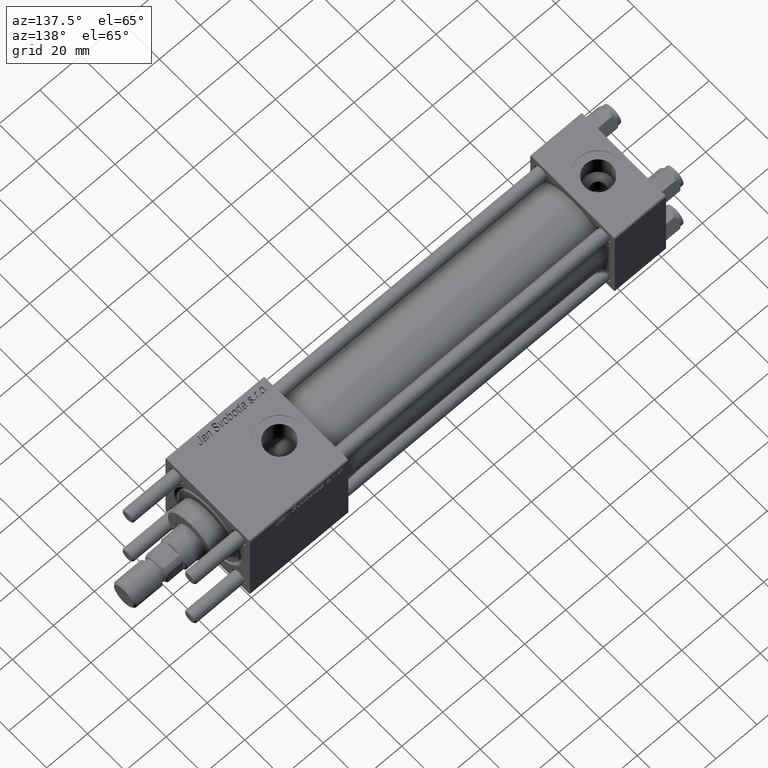
[diagram: clean part render]
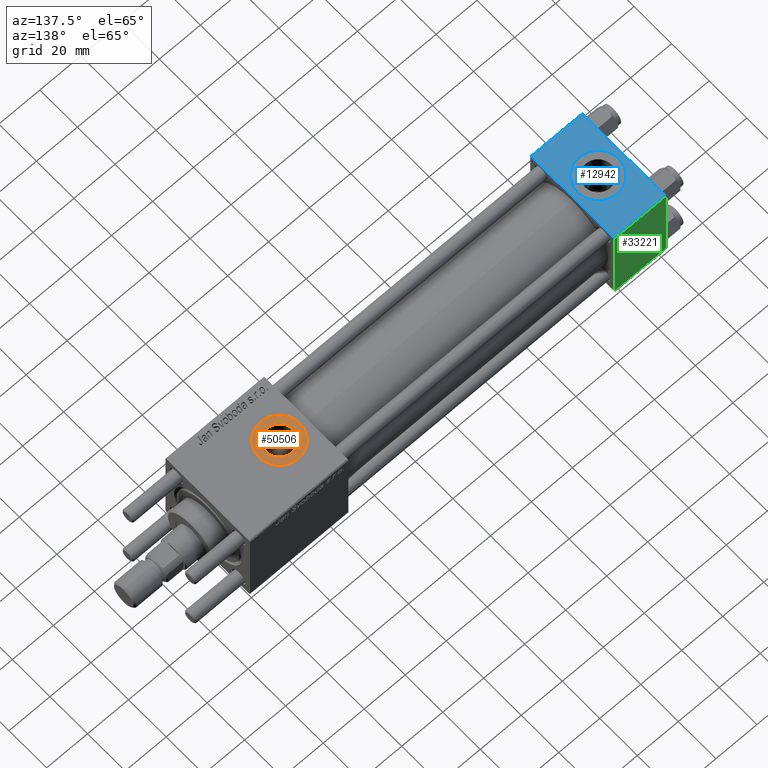
[diagram: same view with three faces highlighted in distinct colors, each labeled with its STEP entity id]
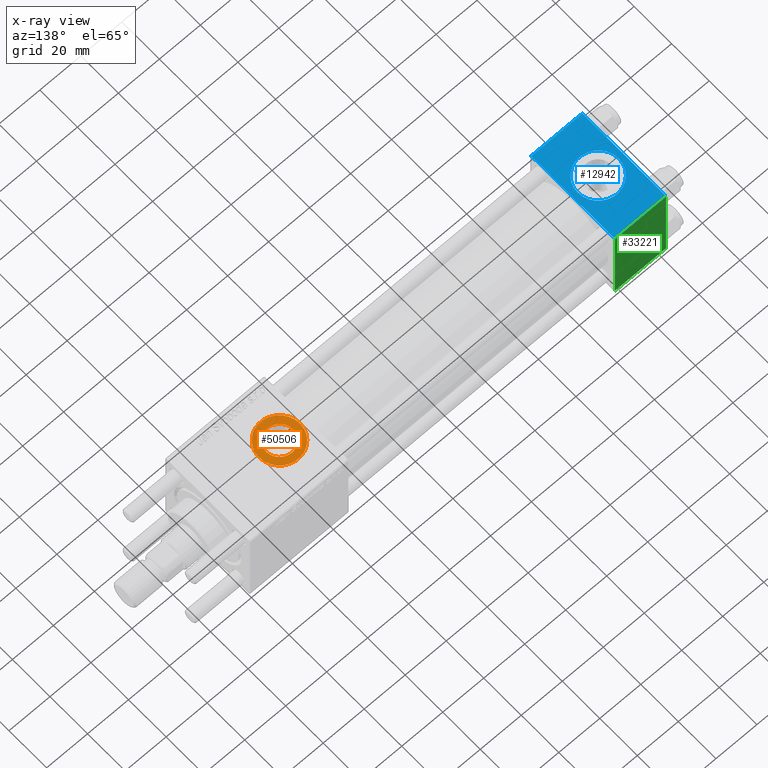
[diagram: x-ray of the same camera — body ghosted, the three highlighted faces saturated]
A machine part, auxiliary view with three faces highlighted in distinct colors.
The next image is the same camera in x-ray (body ghosted, the three faces saturated) — at least one of them is partly hidden behind the body in this view.
Their STEP definitions:

[orange] entity #50506 — the highlighted planar face has unit normal (0, 0, 1).
#644 = CARTESIAN_POINT ( 'NONE',  ( 174.5800000000000409, -4.398352834091458297E-15, 22.29999999999999716 ) ) ;
#885 = AXIS2_PLACEMENT_3D ( 'NONE', #29950, #15394, #34738 ) ;
#1888 = AXIS2_PLACEMENT_3D ( 'NONE', #26181, #39914, #2615 ) ;
#2615 = DIRECTION ( 'NONE',  ( 1.000000000000000000, 0.000000000000000000, -0.000000000000000000 ) ) ;
#5093 = CARTESIAN_POINT ( 'NONE',  ( 178.0000000000000568, -5.204170427930420494E-15, 22.29999999999999716 ) ) ;
#6928 = AXIS2_PLACEMENT_3D ( 'NONE', #46194, #36955, #31896 ) ;
#7399 = PLANE ( 'NONE',  #1888 ) ;
#8719 = CARTESIAN_POINT ( 'NONE',  ( 158.0000000000000284, -3.979523628783065857E-15, 22.29999999999999716 ) ) ;
#9430 = CARTESIAN_POINT ( 'NONE',  ( 161.4200000000000443, -5.204170427930420494E-15, 22.29999999999999716 ) ) ;
#12642 = VERTEX_POINT ( 'NONE', #9430 ) ;
#15394 = DIRECTION ( 'NONE',  ( -0.000000000000000000, -0.000000000000000000, -1.000000000000000000 ) ) ;
#16454 = VERTEX_POINT ( 'NONE', #5093 ) ;
#20750 = EDGE_CURVE ( 'NONE', #33050, #16454, #32651, .T. ) ;
#21238 = CIRCLE ( 'NONE', #57441, 10.00000000000000888 ) ;
#22995 = VERTEX_POINT ( 'NONE', #644 ) ;
#23852 = ORIENTED_EDGE ( 'NONE', *, *, #43893, .T. ) ;
#25294 = EDGE_CURVE ( 'NONE', #16454, #33050, #21238, .T. ) ;
#25460 = AXIS2_PLACEMENT_3D ( 'NONE', #54699, #32608, #40679 ) ;
#26181 = CARTESIAN_POINT ( 'NONE',  ( 168.0000000000000284, -5.204170427930420494E-15, 22.29999999999999716 ) ) ;
#26885 = CARTESIAN_POINT ( 'NONE',  ( 168.0000000000000284, -5.204170427930420494E-15, 22.29999999999999716 ) ) ;
#29950 = CARTESIAN_POINT ( 'NONE',  ( 168.0000000000000284, -5.204170427930420494E-15, 22.29999999999999716 ) ) ;
#31080 = ORIENTED_EDGE ( 'NONE', *, *, #51735, .T. ) ;
#31896 = DIRECTION ( 'NONE',  ( 1.000000000000000000, 0.000000000000000000, 0.000000000000000000 ) ) ;
#32608 = DIRECTION ( 'NONE',  ( -0.000000000000000000, -0.000000000000000000, -1.000000000000000000 ) ) ;
#32651 = CIRCLE ( 'NONE', #6928, 10.00000000000000888 ) ;
#33050 = VERTEX_POINT ( 'NONE', #8719 ) ;
#34489 = EDGE_LOOP ( 'NONE', ( #23852, #31080 ) ) ;
#34738 = DIRECTION ( 'NONE',  ( 1.000000000000000000, 0.000000000000000000, 0.000000000000000000 ) ) ;
#36955 = DIRECTION ( 'NONE',  ( 0.000000000000000000, 0.000000000000000000, 1.000000000000000000 ) ) ;
#37804 = EDGE_LOOP ( 'NONE', ( #42738, #51957 ) ) ;
#38967 = CIRCLE ( 'NONE', #885, 6.580000000000002736 ) ;
#39914 = DIRECTION ( 'NONE',  ( 0.000000000000000000, 0.000000000000000000, 1.000000000000000000 ) ) ;
#40679 = DIRECTION ( 'NONE',  ( 1.000000000000000000, 0.000000000000000000, 0.000000000000000000 ) ) ;
#42738 = ORIENTED_EDGE ( 'NONE', *, *, #25294, .T. ) ;
#43474 = FACE_OUTER_BOUND ( 'NONE', #37804, .T. ) ;
#43558 = CIRCLE ( 'NONE', #25460, 6.580000000000002736 ) ;
#43893 = EDGE_CURVE ( 'NONE', #12642, #22995, #43558, .T. ) ;
#44487 = DIRECTION ( 'NONE',  ( 1.000000000000000000, 0.000000000000000000, 0.000000000000000000 ) ) ;
#45072 = DIRECTION ( 'NONE',  ( 0.000000000000000000, 0.000000000000000000, 1.000000000000000000 ) ) ;
#46194 = CARTESIAN_POINT ( 'NONE',  ( 168.0000000000000284, -5.204170427930420494E-15, 22.29999999999999716 ) ) ;
#47962 = FACE_BOUND ( 'NONE', #34489, .T. ) ;
#50506 = ADVANCED_FACE ( 'NONE', ( #47962, #43474 ), #7399, .T. ) ;
#51735 = EDGE_CURVE ( 'NONE', #22995, #12642, #38967, .T. ) ;
#51957 = ORIENTED_EDGE ( 'NONE', *, *, #20750, .T. ) ;
#54699 = CARTESIAN_POINT ( 'NONE',  ( 168.0000000000000284, -5.204170427930420494E-15, 22.29999999999999716 ) ) ;
#57441 = AXIS2_PLACEMENT_3D ( 'NONE', #26885, #45072, #44487 ) ;

[blue] entity #12942 — the highlighted planar face has unit normal (0, 0, -1).
#609 = EDGE_CURVE ( 'NONE', #16219, #43304, #43136, .T. ) ;
#2654 = EDGE_LOOP ( 'NONE', ( #56775, #9679, #56699, #57610 ) ) ;
#4008 = FACE_BOUND ( 'NONE', #10937, .T. ) ;
#6006 = DIRECTION ( 'NONE',  ( 1.000000000000000000, 0.000000000000000000, 0.000000000000000000 ) ) ;
#7665 = CARTESIAN_POINT ( 'NONE',  ( 22.50000000000000000, -1.734723475976807094E-15, 22.50000000000000000 ) ) ;
#9328 = CARTESIAN_POINT ( 'NONE',  ( 12.50000000000000000, -1.734723475976807094E-15, 22.50000000000000000 ) ) ;
#9361 = PLANE ( 'NONE',  #41941 ) ;
#9679 = ORIENTED_EDGE ( 'NONE', *, *, #20537, .T. ) ;
#9687 = DIRECTION ( 'NONE',  ( 0.000000000000000000, 0.000000000000000000, 1.000000000000000000 ) ) ;
#10478 = DIRECTION ( 'NONE',  ( 0.000000000000000000, -1.000000000000000000, -7.709882115452476934E-17 ) ) ;
#10937 = EDGE_LOOP ( 'NONE', ( #15005, #18299 ) ) ;
#11051 = CARTESIAN_POINT ( 'NONE',  ( 25.00000000000000000, -21.99999999999999289, 22.50000000000000000 ) ) ;
#12108 = DIRECTION ( 'NONE',  ( -1.000000000000000000, 0.000000000000000000, 0.000000000000000000 ) ) ;
#12418 = CARTESIAN_POINT ( 'NONE',  ( 0.000000000000000000, -21.99999999999997868, 22.50000000000000000 ) ) ;
#12942 = ADVANCED_FACE ( 'NONE', ( #4008, #22202 ), #9361, .F. ) ;
#13813 = VERTEX_POINT ( 'NONE', #48104 ) ;
#15005 = ORIENTED_EDGE ( 'NONE', *, *, #15252, .F. ) ;
#15252 = EDGE_CURVE ( 'NONE', #16857, #13813, #46782, .T. ) ;
#15262 = CARTESIAN_POINT ( 'NONE',  ( 0.000000000000000000, 22.50000000000000000, 22.50000000000000355 ) ) ;
#16139 = VERTEX_POINT ( 'NONE', #12418 ) ;
#16219 = VERTEX_POINT ( 'NONE', #25394 ) ;
#16857 = VERTEX_POINT ( 'NONE', #7665 ) ;
#18299 = ORIENTED_EDGE ( 'NONE', *, *, #53801, .F. ) ;
#19737 = LINE ( 'NONE', #11051, #28809 ) ;
#20537 = EDGE_CURVE ( 'NONE', #16139, #46948, #19737, .T. ) ;
#22202 = FACE_OUTER_BOUND ( 'NONE', #2654, .T. ) ;
#23987 = CARTESIAN_POINT ( 'NONE',  ( 12.50000000000000000, -1.734723475976807094E-15, 22.50000000000000000 ) ) ;
#25394 = CARTESIAN_POINT ( 'NONE',  ( 25.00000000000000000, 21.99999999999999289, 22.50000000000000355 ) ) ;
#26679 = AXIS2_PLACEMENT_3D ( 'NONE', #23987, #9687, #51438 ) ;
#28809 = VECTOR ( 'NONE', #6006, 1000.000000000000000 ) ;
#37098 = CARTESIAN_POINT ( 'NONE',  ( 25.00000000000000000, 22.50000000000000000, 22.50000000000000355 ) ) ;
#37372 = DIRECTION ( 'NONE',  ( 1.000000000000000000, 0.000000000000000000, 0.000000000000000000 ) ) ;
#38498 = LINE ( 'NONE', #15262, #54221 ) ;
#38666 = CARTESIAN_POINT ( 'NONE',  ( 0.000000000000000000, 21.99999999999999289, 22.50000000000000355 ) ) ;
#41941 = AXIS2_PLACEMENT_3D ( 'NONE', #55893, #50531, #52203 ) ;
#43136 = LINE ( 'NONE', #38666, #45503 ) ;
#43304 = VERTEX_POINT ( 'NONE', #51322 ) ;
#45503 = VECTOR ( 'NONE', #12108, 1000.000000000000000 ) ;
#46336 = LINE ( 'NONE', #37098, #52339 ) ;
#46782 = CIRCLE ( 'NONE', #51562, 9.999999999999998224 ) ;
#46948 = VERTEX_POINT ( 'NONE', #51262 ) ;
#47611 = CIRCLE ( 'NONE', #26679, 9.999999999999998224 ) ;
#48104 = CARTESIAN_POINT ( 'NONE',  ( 2.500000000000003997, -5.100766768294543310E-16, 22.50000000000000000 ) ) ;
#49430 = EDGE_CURVE ( 'NONE', #43304, #16139, #38498, .T. ) ;
#50493 = DIRECTION ( 'NONE',  ( 0.000000000000000000, 0.000000000000000000, 1.000000000000000000 ) ) ;
#50531 = DIRECTION ( 'NONE',  ( 0.000000000000000000, 7.709882115452476934E-17, -1.000000000000000000 ) ) ;
#51262 = CARTESIAN_POINT ( 'NONE',  ( 25.00000000000000000, -21.99999999999997868, 22.50000000000000000 ) ) ;
#51322 = CARTESIAN_POINT ( 'NONE',  ( 0.000000000000000000, 21.99999999999999289, 22.50000000000000355 ) ) ;
#51438 = DIRECTION ( 'NONE',  ( 1.000000000000000000, 0.000000000000000000, 0.000000000000000000 ) ) ;
#51562 = AXIS2_PLACEMENT_3D ( 'NONE', #9328, #50493, #37372 ) ;
#52203 = DIRECTION ( 'NONE',  ( 0.000000000000000000, 1.000000000000000000, 7.709882115452476934E-17 ) ) ;
#52339 = VECTOR ( 'NONE', #58911, 1000.000000000000000 ) ;
#53801 = EDGE_CURVE ( 'NONE', #13813, #16857, #47611, .T. ) ;
#54221 = VECTOR ( 'NONE', #10478, 1000.000000000000000 ) ;
#55893 = CARTESIAN_POINT ( 'NONE',  ( 25.00000000000000000, 22.50000000000000000, 22.50000000000000355 ) ) ;
#56457 = EDGE_CURVE ( 'NONE', #16219, #46948, #46336, .T. ) ;
#56699 = ORIENTED_EDGE ( 'NONE', *, *, #56457, .F. ) ;
#56775 = ORIENTED_EDGE ( 'NONE', *, *, #49430, .T. ) ;
#57610 = ORIENTED_EDGE ( 'NONE', *, *, #609, .T. ) ;
#58911 = DIRECTION ( 'NONE',  ( 0.000000000000000000, -1.000000000000000000, -7.709882115452476934E-17 ) ) ;

[green] entity #33221 — the highlighted planar face has unit normal (0, 1, 0).
#72 = DIRECTION ( 'NONE',  ( 1.000000000000000000, 0.000000000000000000, 0.000000000000000000 ) ) ;
#1632 = VERTEX_POINT ( 'NONE', #50183 ) ;
#4405 = VECTOR ( 'NONE', #14624, 1000.000000000000000 ) ;
#9013 = CARTESIAN_POINT ( 'NONE',  ( 0.000000000000000000, 22.50000000000000000, -21.99999999999996803 ) ) ;
#9431 = ORIENTED_EDGE ( 'NONE', *, *, #43359, .T. ) ;
#10930 = CARTESIAN_POINT ( 'NONE',  ( 0.000000000000000000, 22.50000000000000000, 22.50000000000000355 ) ) ;
#13881 = VERTEX_POINT ( 'NONE', #9013 ) ;
#14032 = VECTOR ( 'NONE', #43819, 1000.000000000000000 ) ;
#14624 = DIRECTION ( 'NONE',  ( -1.000000000000000000, 0.000000000000000000, 0.000000000000000000 ) ) ;
#15270 = DIRECTION ( 'NONE',  ( -0.000000000000000000, 1.000000000000000000, 0.000000000000000000 ) ) ;
#18859 = CARTESIAN_POINT ( 'NONE',  ( 25.00000000000000000, 22.50000000000000000, 22.50000000000000355 ) ) ;
#22428 = CARTESIAN_POINT ( 'NONE',  ( 25.00000000000000000, 22.50000000000000000, 21.99999999999999645 ) ) ;
#23850 = CARTESIAN_POINT ( 'NONE',  ( 25.00000000000000000, 22.50000000000000000, -21.99999999999998224 ) ) ;
#23901 = DIRECTION ( 'NONE',  ( 0.000000000000000000, -0.000000000000000000, 1.000000000000000000 ) ) ;
#24714 = EDGE_CURVE ( 'NONE', #1632, #13881, #51799, .T. ) ;
#28667 = PLANE ( 'NONE',  #44308 ) ;
#32255 = LINE ( 'NONE', #22428, #38600 ) ;
#33065 = EDGE_CURVE ( 'NONE', #1632, #44265, #32255, .T. ) ;
#33148 = FACE_OUTER_BOUND ( 'NONE', #41283, .T. ) ;
#33221 = ADVANCED_FACE ( 'NONE', ( #33148 ), #28667, .T. ) ;
#34282 = CARTESIAN_POINT ( 'NONE',  ( 25.00000000000000000, 22.50000000000000000, 22.50000000000000355 ) ) ;
#35306 = EDGE_CURVE ( 'NONE', #42919, #13881, #37285, .T. ) ;
#37285 = LINE ( 'NONE', #23850, #4405 ) ;
#38600 = VECTOR ( 'NONE', #72, 1000.000000000000000 ) ;
#39286 = VECTOR ( 'NONE', #47310, 1000.000000000000000 ) ;
#41283 = EDGE_LOOP ( 'NONE', ( #9431, #49687, #57314, #42132 ) ) ;
#42132 = ORIENTED_EDGE ( 'NONE', *, *, #33065, .T. ) ;
#42919 = VERTEX_POINT ( 'NONE', #47721 ) ;
#43359 = EDGE_CURVE ( 'NONE', #44265, #42919, #56686, .T. ) ;
#43819 = DIRECTION ( 'NONE',  ( 0.000000000000000000, 0.000000000000000000, -1.000000000000000000 ) ) ;
#44265 = VERTEX_POINT ( 'NONE', #46853 ) ;
#44308 = AXIS2_PLACEMENT_3D ( 'NONE', #18859, #15270, #23901 ) ;
#46853 = CARTESIAN_POINT ( 'NONE',  ( 25.00000000000000000, 22.50000000000000000, 21.99999999999999645 ) ) ;
#47310 = DIRECTION ( 'NONE',  ( 0.000000000000000000, 0.000000000000000000, -1.000000000000000000 ) ) ;
#47721 = CARTESIAN_POINT ( 'NONE',  ( 25.00000000000000000, 22.50000000000000000, -21.99999999999996803 ) ) ;
#49687 = ORIENTED_EDGE ( 'NONE', *, *, #35306, .T. ) ;
#50183 = CARTESIAN_POINT ( 'NONE',  ( 0.000000000000000000, 22.50000000000000000, 21.99999999999999645 ) ) ;
#51799 = LINE ( 'NONE', #10930, #39286 ) ;
#56686 = LINE ( 'NONE', #34282, #14032 ) ;
#57314 = ORIENTED_EDGE ( 'NONE', *, *, #24714, .F. ) ;